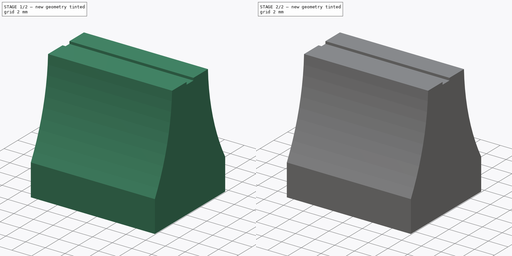
[diagram: build sequence overview — one tinted view per stage of 2, left to right]
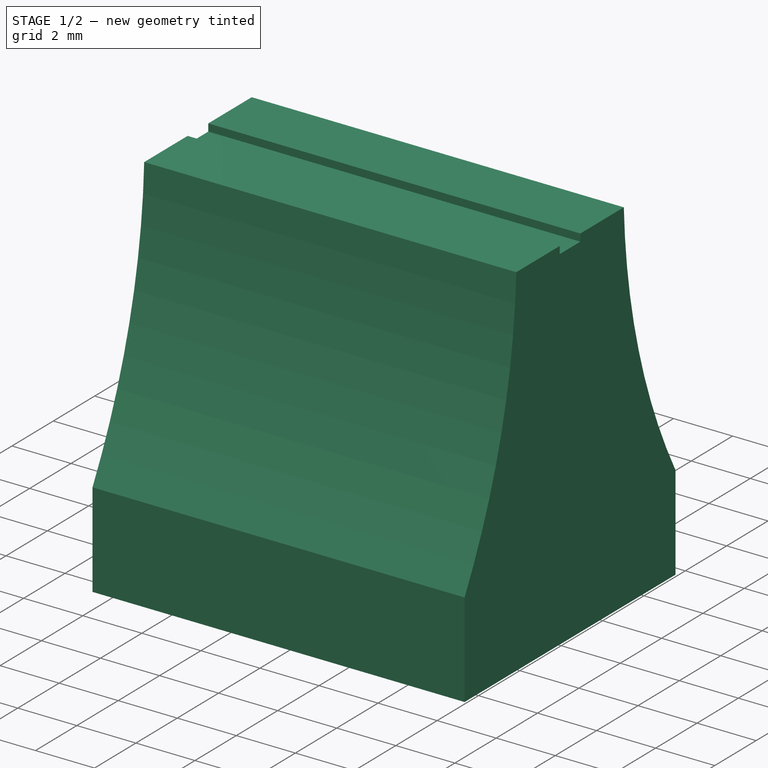
[diagram: stage 1 of 2 — iso view after this stage's code; geometry added in this stage tinted green]
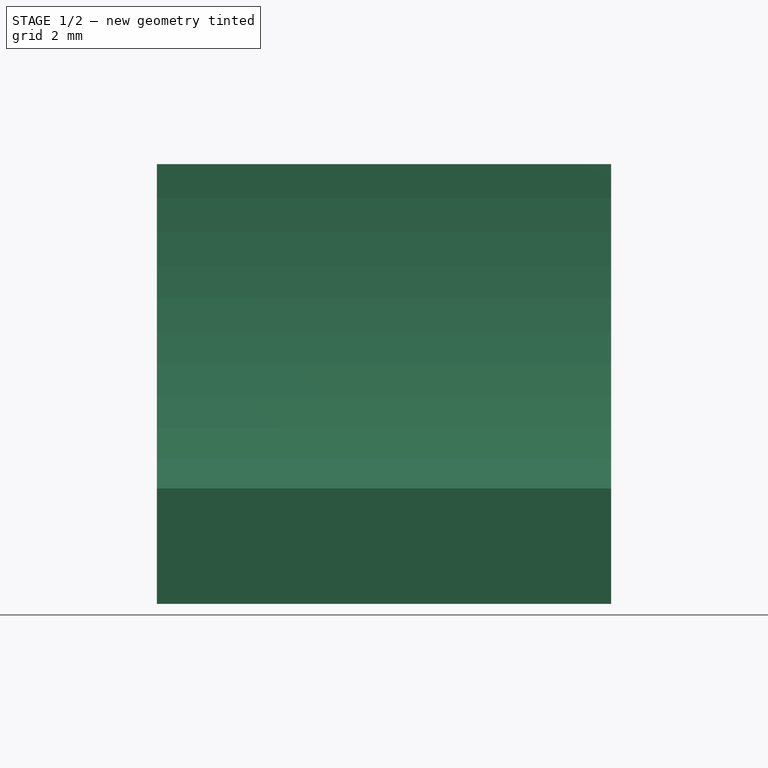
[diagram: stage 1 of 2 — front view after this stage's code; geometry added in this stage tinted green]
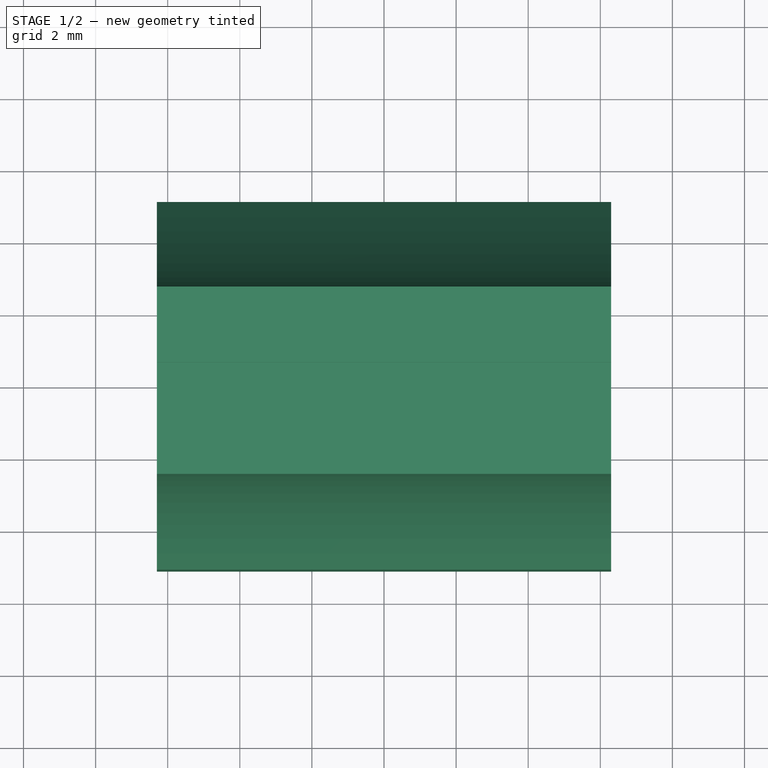
[diagram: stage 1 of 2 — top view after this stage's code; geometry added in this stage tinted green]
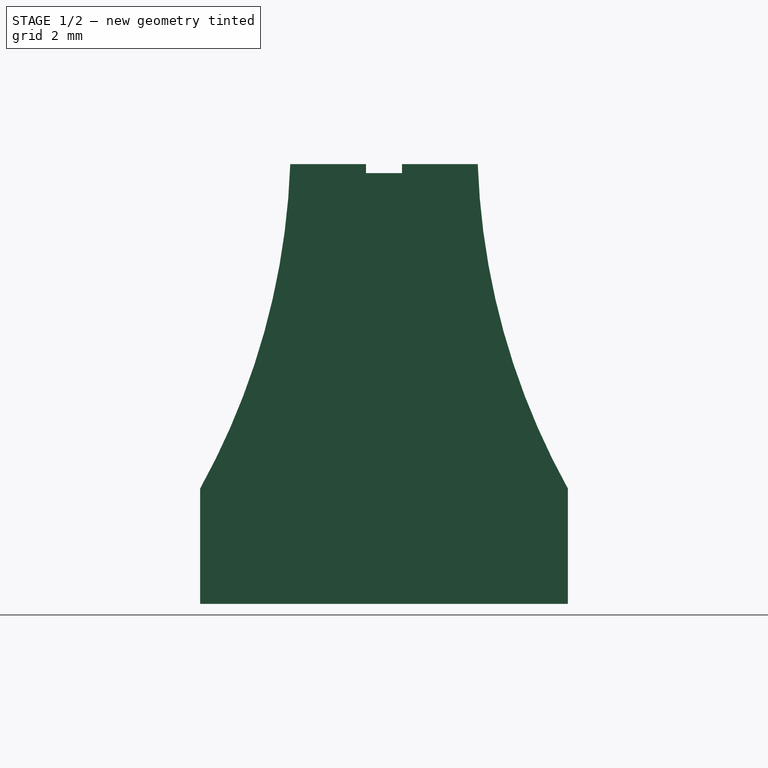
[diagram: stage 1 of 2 — right view after this stage's code; geometry added in this stage tinted green]
FCSTD DOCUMENT  (FreeCAD 0.19R24276 (Git))
Label: fader_cap
License: All rights reserved
LicenseURL: http://en.wikipedia.org/wiki/All_rights_reserved
objects: Sketcher::SketchObject×2, PartDesign::Pad×2, PartDesign::Thickness×1, PartDesign::Body×1
note: 9 computed .brp shape members not serialized (recipe doc carries the construction recipe); baked Part::Feature solids carry a one-line shape summary decoded from their .brp

FEATURE [Sketcher::SketchObject] Sketch
  FullyConstrained = true
  MapMode = 5
  Placement = pos=(0,0,0) rot=(0.57735,0.57735,0.57735;2.0944rad)
  Support = -> [YZ_Plane]
  sketch-geometry (14):
    g0: LineSegment StartX=-5.1 StartY=0 StartZ=0 EndX=-5.1 EndY=3.2 EndZ=0
    g1: LineSegment StartX=5.1 StartY=0 StartZ=0 EndX=5.1 EndY=3.2 EndZ=0
    g2: LineSegment StartX=-2.6 StartY=12.2 StartZ=0 EndX=-0.5 EndY=12.2 EndZ=0
    g3: LineSegment StartX=-0.5 StartY=12.2 StartZ=0 EndX=-0.5 EndY=11.95 EndZ=0
    g4: LineSegment StartX=-0.5 StartY=11.95 StartZ=0 EndX=0.5 EndY=11.95 EndZ=0
    g5: LineSegment StartX=0.5 StartY=11.95 StartZ=0 EndX=0.5 EndY=12.2 EndZ=0
    g6: LineSegment StartX=0.5 StartY=12.2 StartZ=0 EndX=2.6 EndY=12.2 EndZ=0
    g7: LineSegment StartX=-2.6 StartY=12.2 StartZ=0 EndX=0 EndY=0 EndZ=0
    g8: LineSegment StartX=0 StartY=0 StartZ=0 EndX=2.6 EndY=12.2 EndZ=0
    g9: ArcOfCircle CenterX=-22.5876 CenterY=12.9049 CenterZ=0 NormalX=0 NormalY=0 NormalZ=1 AngleXU=0 Radius=20 StartAngle=5.77654 EndAngle=6.24793
    g10: ArcOfCircle CenterX=22.5876 CenterY=12.9049 CenterZ=0 NormalX=0 NormalY=0 NormalZ=1 AngleXU=0 Radius=20 StartAngle=3.17684 EndAngle=3.64823
    g11: LineSegment StartX=-5.1 StartY=0 StartZ=0 EndX=5.1 EndY=0 EndZ=0
    g12: LineSegment StartX=-5.1 StartY=0 StartZ=0 EndX=-0.5 EndY=11.95 EndZ=0
    g13: LineSegment StartX=0.5 StartY=11.95 StartZ=0 EndX=5.1 EndY=0 EndZ=0
  constraints (40):
    c: PointOnObject(g0,g-1)
    c: PointOnObject(g1,g-1)
    c: Horizontal(g2)
    c: Coincident(g3,g2)
    c: Vertical(g3)
    c: Coincident(g3,g4)
    c: Horizontal(g4)
    c: Coincident(g4,g5)
    c: Vertical(g5)
    c: Coincident(g5,g6)
    c: Horizontal(g6)
    c: DistanceX(g4,g4) = 1
    c: DistanceY(g3,g3) = 0.25
    c: Equal(g3,g5)
    c: Coincident(g2,g7)
    c: Coincident(g7,g-1)
    c: Coincident(g7,g8)
    c: Coincident(g8,g6)
    c: Equal(g6,g2)
    c: DistanceX(g2,g6) = 5.2
    c: Equal(g7,g8)
    c: DistanceY(g-1,g2) = 12.2
    c: Coincident(g9,g0)
    c: Coincident(g9,g2)
    c: Coincident(g10,g6)
    c: Coincident(g10,g1)
    c: Radius(g9) = 20
    c: Equal(g9,g10)
    c: Vertical(g1)
    c: Vertical(g0)
    c: Equal(g0,g1)
    c: Coincident(g11,g0)
    c: Coincident(g11,g1)
    c: Coincident(g12,g0)
    c: Coincident(g12,g3)
    c: Coincident(g13,g4)
    c: Coincident(g13,g1)
    c: Equal(g12,g13)
    c: DistanceX(g11,g11) = 10.2
    c: DistanceY(g0,g0) = 3.2
FEATURE [PartDesign::Pad] Pad
  Direction = (1,1,1)
  Length = 12.6
  Length2 = 100
  Midplane = true
  Placement = pos=(0,0,0) rot=(0.57735,0.57735,0.57735;2.0944rad)
  Profile = -> Sketch
  Type = 0
FEATURE [PartDesign::Thickness] Thickness
  Base = -> Pad [Face10]
  BaseFeature = -> Pad
  Intersection = true
  Join = 0
  Mode = 0
  Reversed = true
  SupportTransform = false
  Value = 0.8
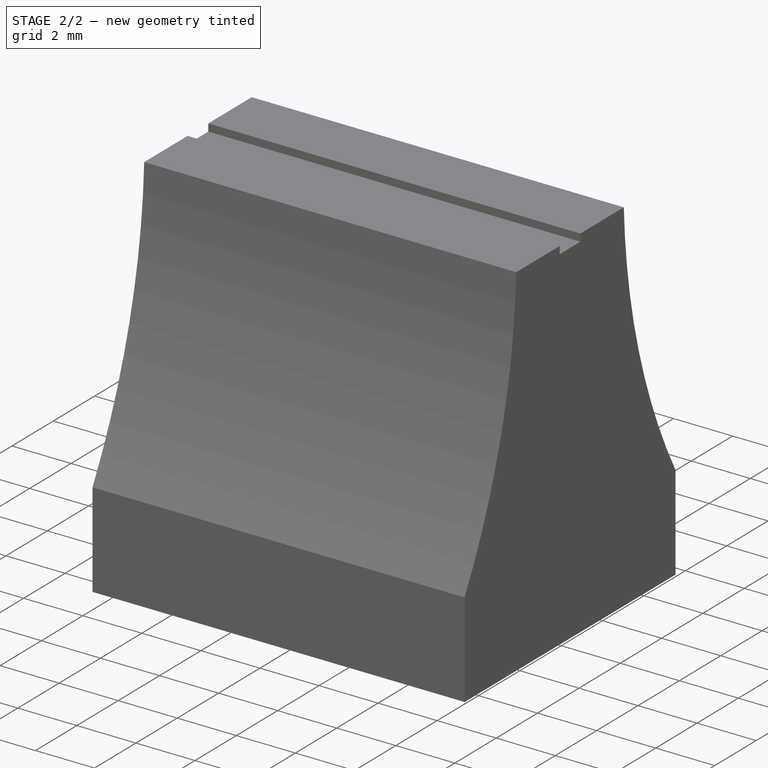
[diagram: stage 2 of 2 — iso view after this stage's code; geometry added in this stage tinted green]
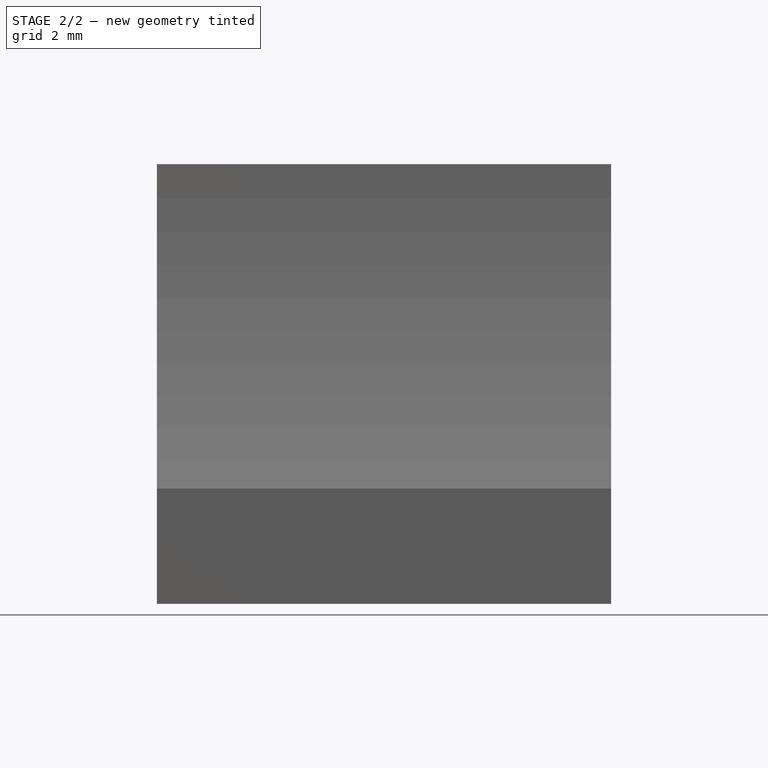
[diagram: stage 2 of 2 — front view after this stage's code; geometry added in this stage tinted green]
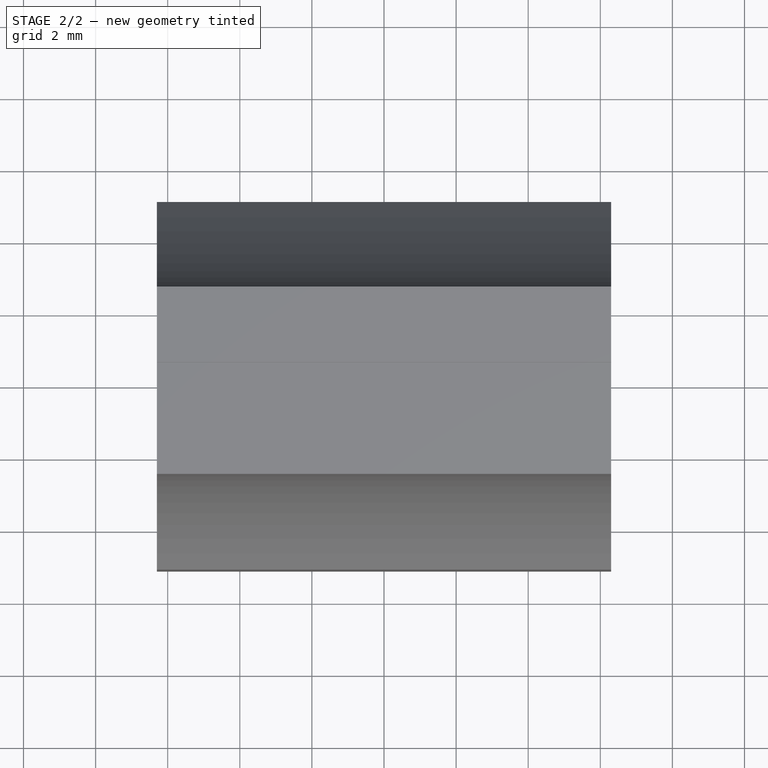
[diagram: stage 2 of 2 — top view after this stage's code; geometry added in this stage tinted green]
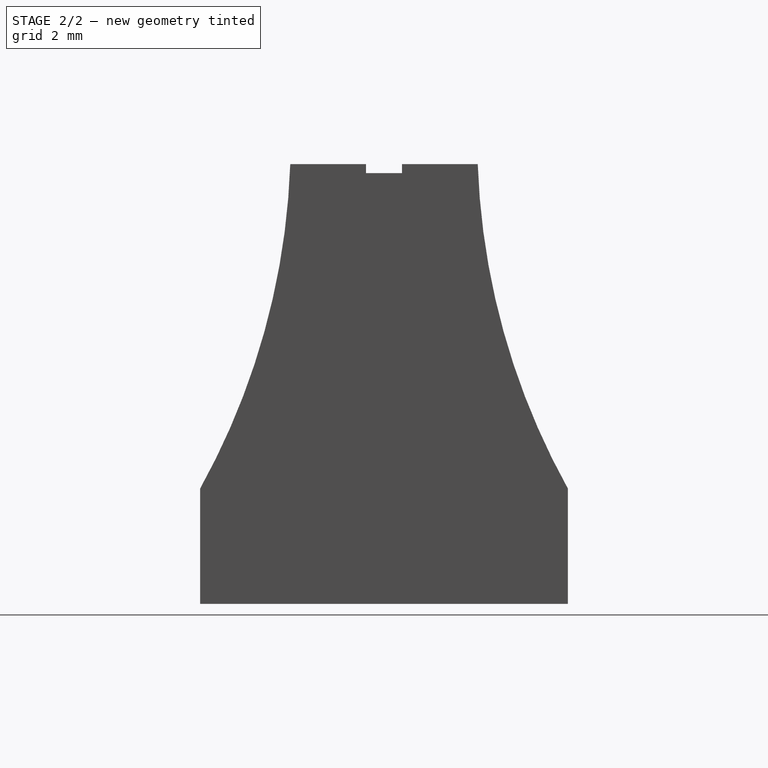
[diagram: stage 2 of 2 — right view after this stage's code; geometry added in this stage tinted green]
FEATURE [Sketcher::SketchObject] Sketch001
  AttachmentOffset = pos=(0,0,9) rot=(0,0,1;0rad)
  FullyConstrained = true
  MapMode = 5
  Placement = pos=(0,0,9) rot=(0,0,1;0rad)
  Support = -> [XY_Plane]
  sketch-geometry (15):
    g0: LineSegment StartX=-0.6 StartY=2 StartZ=0 EndX=0.6 EndY=2 EndZ=0
    g1: LineSegment StartX=0.6 StartY=2 StartZ=0 EndX=0.6 EndY=-2 EndZ=0
    g2: LineSegment StartX=0.6 StartY=-2 StartZ=0 EndX=-0.6 EndY=-2 EndZ=0
    g3: LineSegment StartX=-0.6 StartY=-2 StartZ=0 EndX=-0.6 EndY=2 EndZ=0
    g4: LineSegment StartX=-1.4 StartY=2.8 StartZ=0 EndX=1.4 EndY=2.8 EndZ=0
    g5: LineSegment StartX=1.4 StartY=2.8 StartZ=0 EndX=1.4 EndY=-2.8 EndZ=0
    g6: LineSegment StartX=1.4 StartY=-2.8 StartZ=0 EndX=-1.4 EndY=-2.8 EndZ=0
    g7: LineSegment StartX=-1.4 StartY=-2.8 StartZ=0 EndX=-1.4 EndY=2.8 EndZ=0
    g8: LineSegment StartX=-0.6 StartY=2 StartZ=0 EndX=-0.6 EndY=2.8 EndZ=0
    g9: LineSegment StartX=-0.6 StartY=2 StartZ=0 EndX=-1.4 EndY=2 EndZ=0
    g10: LineSegment StartX=0.6 StartY=-2 StartZ=0 EndX=0.6 EndY=-2.8 EndZ=0
    g11: LineSegment StartX=0.6 StartY=-2 StartZ=0 EndX=1.4 EndY=-2 EndZ=0
    g12: LineSegment StartX=0.6 StartY=2 StartZ=0 EndX=0 EndY=0 EndZ=0
    g13: LineSegment StartX=0 StartY=0 StartZ=0 EndX=-0.6 EndY=2 EndZ=0
    g14: LineSegment StartX=-0.6 StartY=-2 StartZ=0 EndX=0 EndY=0 EndZ=0
  constraints (42):
    c: Coincident(g0,g1)
    c: Coincident(g1,g2)
    c: Coincident(g2,g3)
    c: Coincident(g3,g0)
    c: Horizontal(g0)
    c: Horizontal(g2)
    c: Vertical(g1)
    c: Vertical(g3)
    c: DistanceY(g3,g3) = 4
    c: DistanceX(g0,g0) = 1.2
    c: Coincident(g4,g5)
    c: Coincident(g5,g6)
    c: Coincident(g6,g7)
    c: Coincident(g7,g4)
    c: Horizontal(g4)
    c: Horizontal(g6)
    c: Vertical(g5)
    c: Vertical(g7)
    c: Coincident(g8,g0)
    c: PointOnObject(g8,g4)
    c: Vertical(g8)
    c: Coincident(g9,g0)
    c: PointOnObject(g9,g7)
    c: Horizontal(g9)
    c: Coincident(g10,g1)
    c: PointOnObject(g10,g6)
    c: Vertical(g10)
    c: Coincident(g11,g1)
    c: PointOnObject(g11,g5)
    c: Horizontal(g11)
    c: Equal(g11,g10)
    c: Equal(g10,g9)
    c: Equal(g9,g8)
    c: DistanceX(g11,g11) = 0.8
    c: Coincident(g0,g12)
    c: Coincident(g12,g-1)
    c: Coincident(g12,g13)
    c: Coincident(g13,g0)
    c: Coincident(g2,g14)
    c: Coincident(g14,g-1)
    c: Equal(g14,g13)
    c: Equal(g13,g12)
FEATURE [PartDesign::Pad] Pad001
  BaseFeature = -> Thickness
  Direction = (1,1,1)
  Length = 9
  Length2 = 100
  Profile = -> Sketch001
  Reversed = true
  Type = 0
FEATURE [PartDesign::Body] Body
  Group = -> [Sketch,Pad,Thickness,Sketch001,Pad001]
  Origin = -> Origin
  Tip = -> Pad001
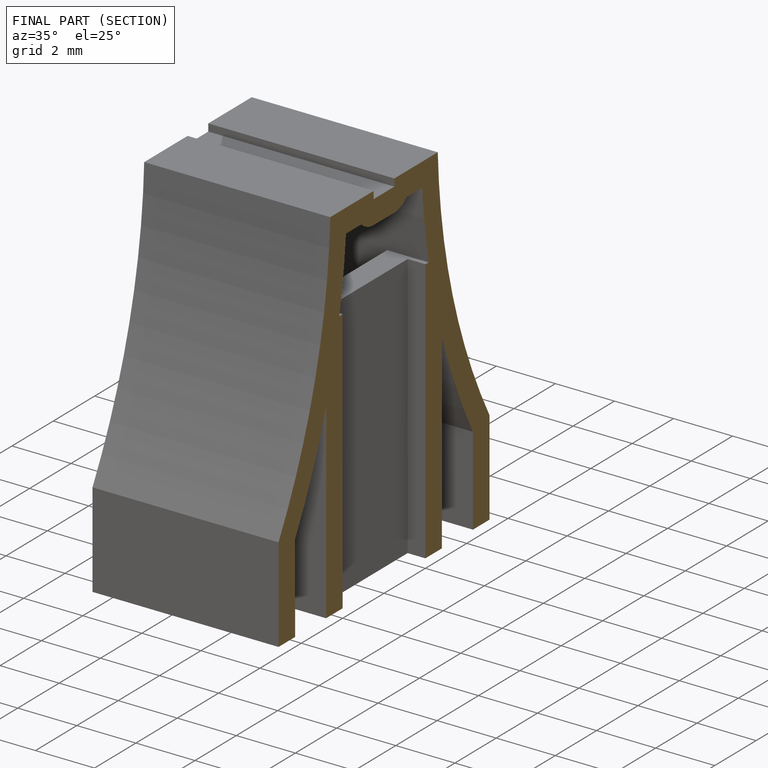
[diagram: finished part — half-section view (interior)]
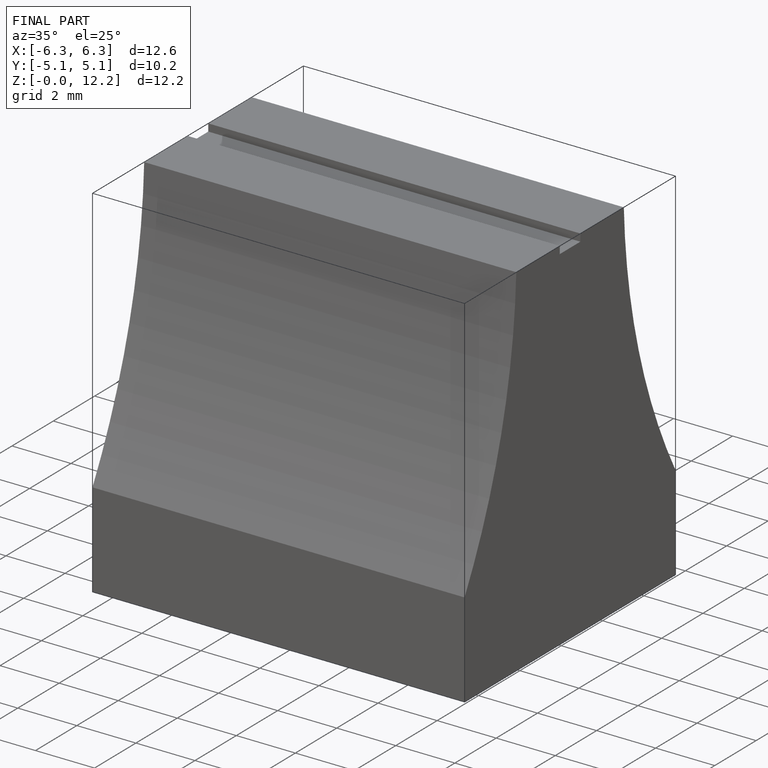
[diagram: finished part — iso view with bounding-box wireframe]
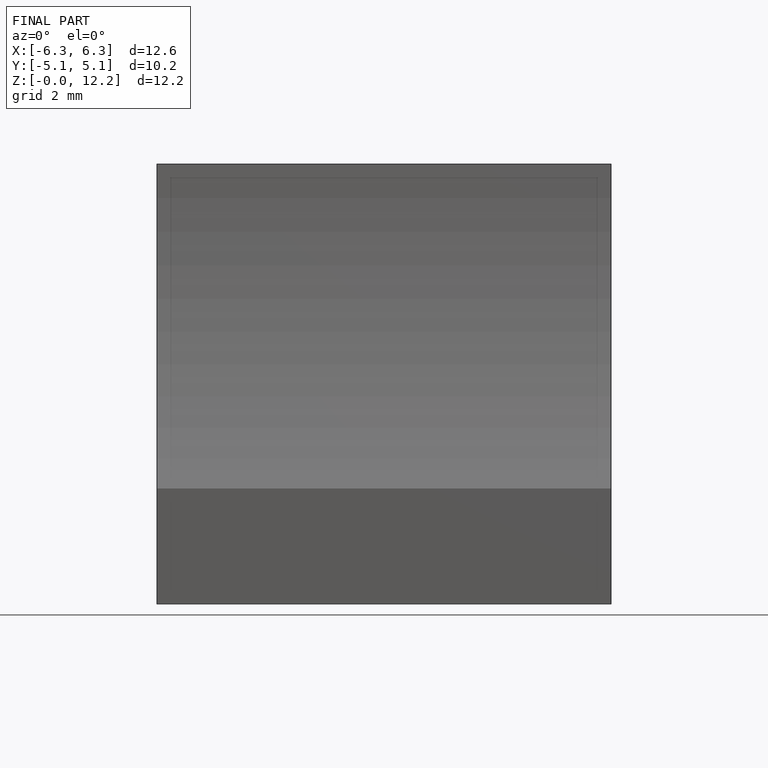
[diagram: finished part — front view with bounding-box wireframe]
